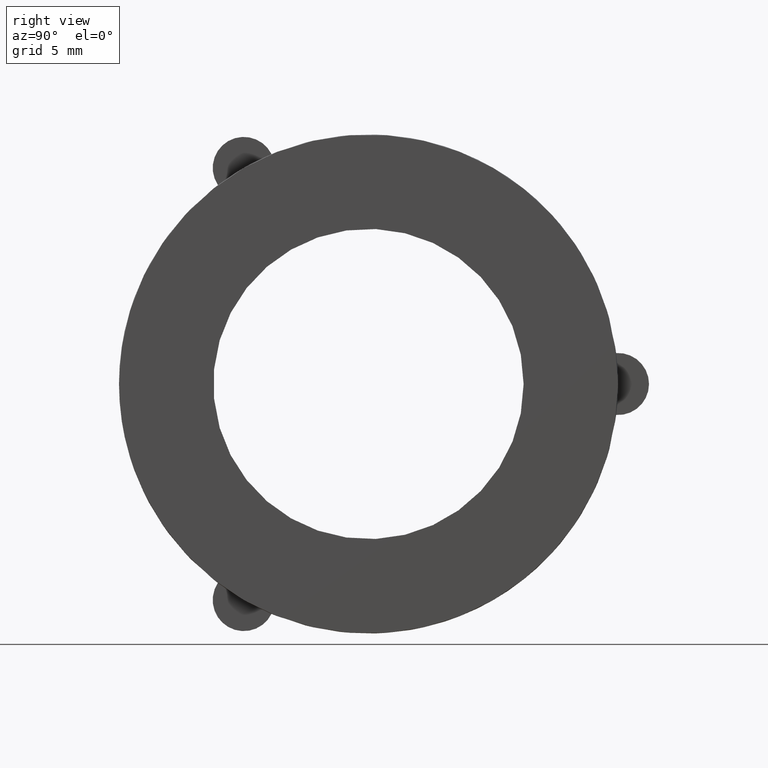
[diagram: clean part render]
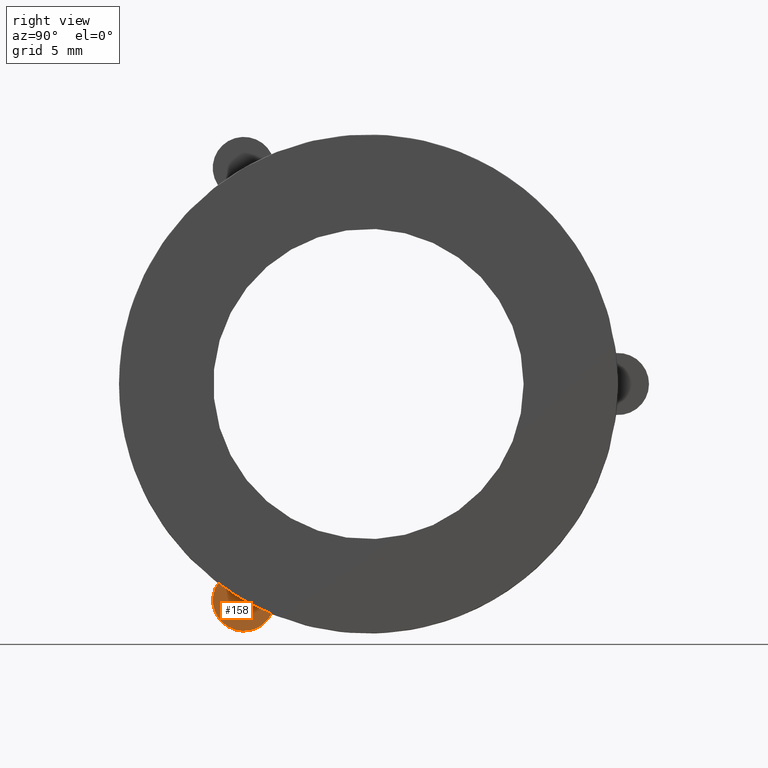
[diagram: same view with one face highlighted and labeled with its STEP entity id]
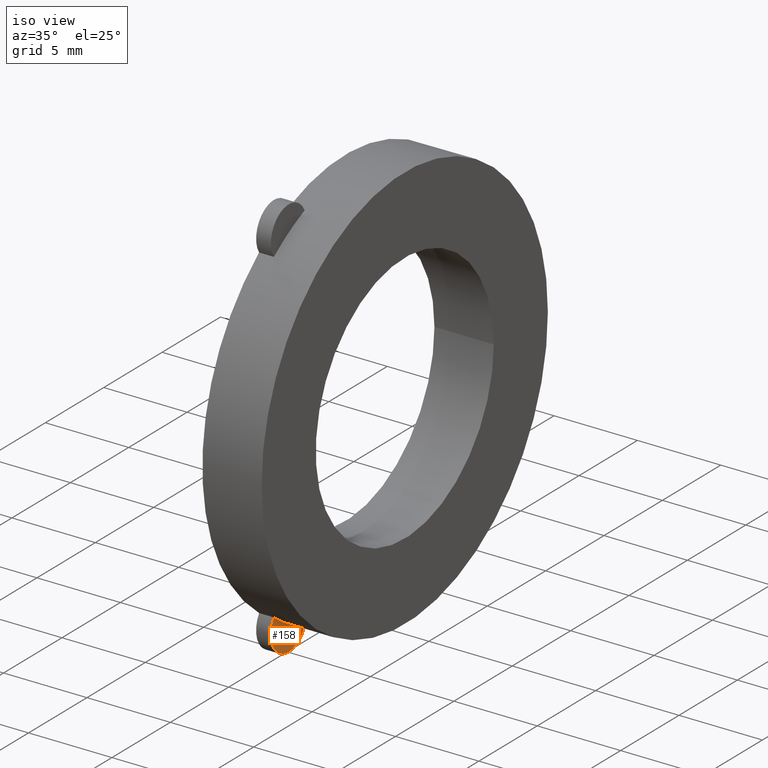
[diagram: same view with one face highlighted and labeled with its STEP entity id]
A machine part, right view. The second image highlights one B-rep face of the part: STEP entity #158.
A second angle (iso view) of the same face is appended — the face is thin or edge-on in the first view.
In plain terms, the highlighted planar face has unit normal (1, 0, 0).
Its self-contained STEP definition (entity closure, byte-faithful):
#36=FACE_OUTER_BOUND('',#46,.T.);
#46=EDGE_LOOP('',(#111,#112));
#60=CIRCLE('',#177,0.4825);
#61=CIRCLE('',#178,0.06);
#75=VERTEX_POINT('',#261);
#76=VERTEX_POINT('',#262);
#90=EDGE_CURVE('',#75,#76,#60,.T.);
#91=EDGE_CURVE('',#75,#76,#61,.T.);
#111=ORIENTED_EDGE('',*,*,#90,.F.);
#112=ORIENTED_EDGE('',*,*,#91,.T.);
#153=PLANE('',#176);
#158=ADVANCED_FACE('',(#36),#153,.T.);
#176=AXIS2_PLACEMENT_3D('',#260,#203,#204);
#177=AXIS2_PLACEMENT_3D('',#263,#205,#206);
#178=AXIS2_PLACEMENT_3D('',#264,#207,#208);
#203=DIRECTION('center_axis',(1.,0.,0.));
#204=DIRECTION('ref_axis',(0.,0.,-1.));
#205=DIRECTION('center_axis',(1.,0.,0.));
#206=DIRECTION('ref_axis',(0.,1.,0.));
#207=DIRECTION('center_axis',(1.,0.,0.));
#208=DIRECTION('ref_axis',(0.,0.,-1.));
#260=CARTESIAN_POINT('Origin',(0.035,-0.24125,-0.417857257325992));
#261=CARTESIAN_POINT('',(0.035,-0.291245703600135,-0.384684533266496));
#262=CARTESIAN_POINT('',(0.035,-0.187523726451678,-0.444568444694038));
#263=CARTESIAN_POINT('Origin',(0.035,0.,0.));
#264=CARTESIAN_POINT('Origin',(0.035,-0.24125,-0.417857257325992));